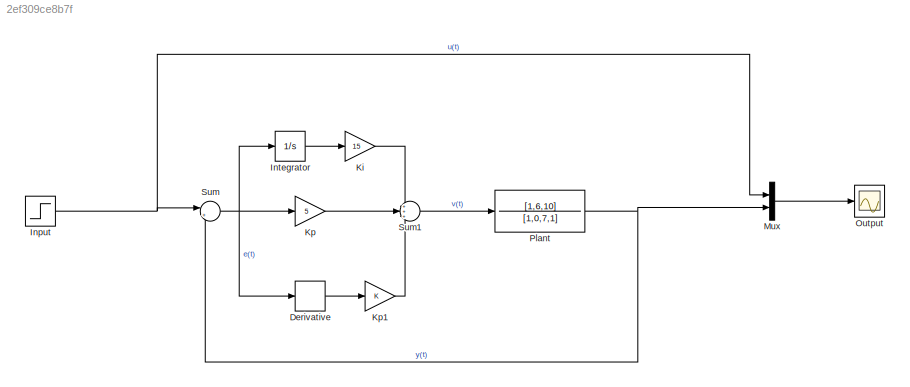
MODEL slx_2ef309ce8b7f
KIND model
CONFIG AbsTol = auto
CONFIG EnableMultiTasking = off
CONFIG FixedStep = auto
CONFIG MaxStep = auto
CONFIG MinStep = auto
CONFIG RelTol = 1e-3
CONFIG SampleTimeConstraint = Unconstrained
CONFIG SolverName = VariableStepAuto
CONFIG StartTime = 0.0
CONFIG StopTime = 10.0
BLOCK [Derivative] Derivative
BLOCK [Step] Input
  SampleTime = 0
BLOCK [Integrator] Integrator
  Ports = [1, 1]
BLOCK [Gain] Ki
  Gain = 15
BLOCK [Gain] Kp
  Gain = 5
BLOCK [Gain] Kp1
BLOCK [Mux] Mux
  DisplayOption = bar
  Inputs = 2
  Ports = [2, 1]
BLOCK [Scope] Output
  Floating = off
  NumInputPorts = 1
  Ports = [1]
  ScopeSpecificationString = Simulink.scopes.TimeScopeBlockCfg('CurrentConfiguration', extmgr.ConfigurationSet(extmgr.Configuration('Core','General UI',true),extmgr.Configuration('Core','Source UI',true),extmgr.Configuration('Sources','WiredSimulink',true),extmgr.Configuration('Visuals','Time Domain',true,'SerializedDisplays',{struct('MinYLimReal','-0.16829','MaxYLimReal','1.51462','YLabelReal','','MinYLimMag','0.00000','MaxY...<+1402ch>
BLOCK [TransferFcn] Plant
  Denominator = [1,0,7,1]
  Numerator = [1,6,10]
BLOCK [Sum] Sum
  Inputs = |+-
  Ports = [2, 1]
BLOCK [Sum] Sum1
  Inputs = +++
  Ports = [3, 1]
LINE Derivative:1 -> Kp1:1
NET Input:1 -> Mux:1, Sum:1
LINE Integrator:1 -> Ki:1
LINE Ki:1 -> Sum1:1
LINE Kp1:1 -> Sum1:3
LINE Kp:1 -> Sum1:2
LINE Mux:1 -> Output:1
NET Plant:1 -> Mux:2, Sum:2
LINE Sum1:1 -> Plant:1
NET Sum:1 -> Derivative:1, Integrator:1, Kp:1
note: NET lines group one-source signal fan-out (src -> all destinations, sorted); 1:1 wires keep LINE
